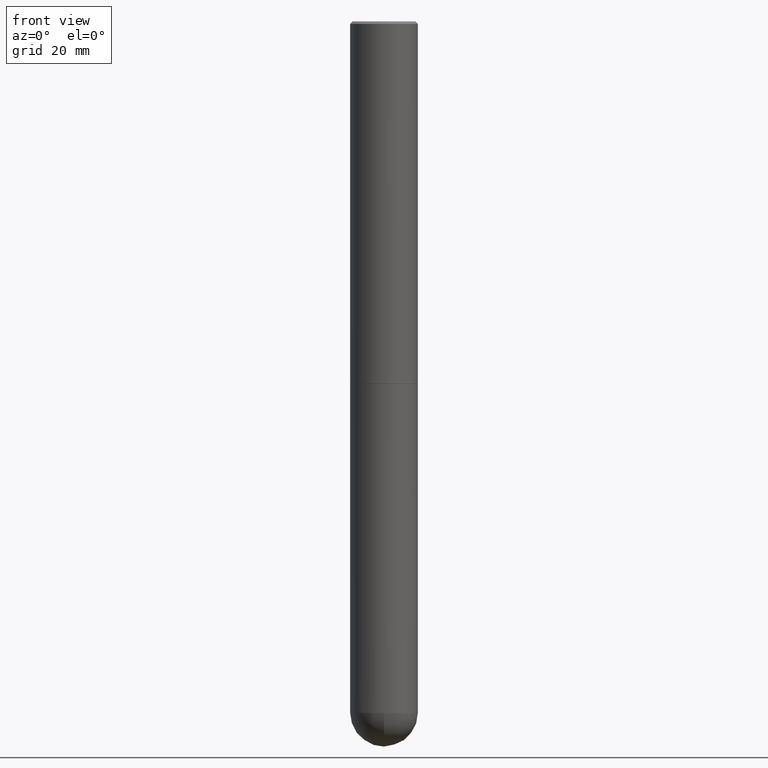
[diagram: clean part render]
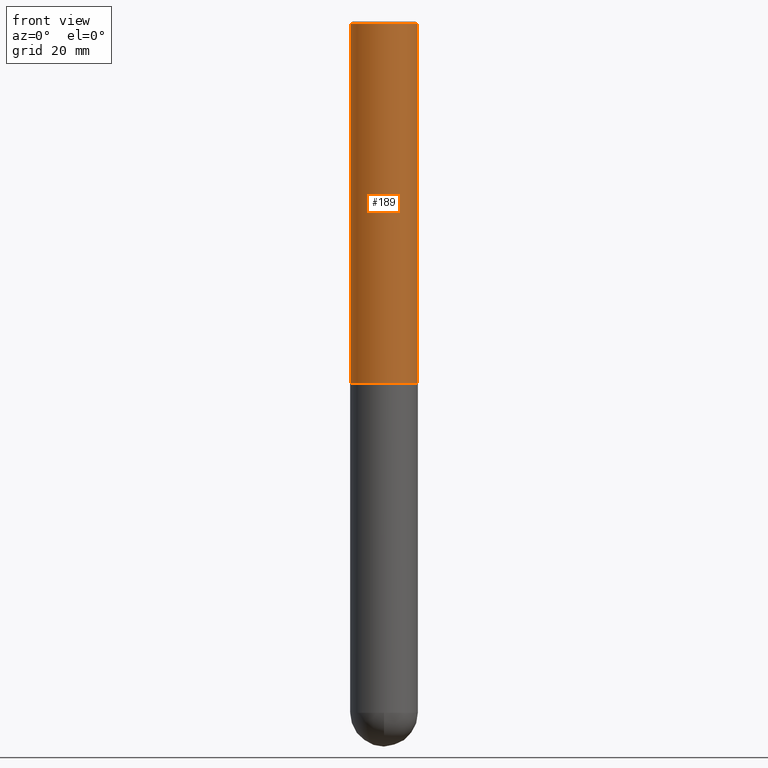
[diagram: same view with one face highlighted and labeled with its STEP entity id]
A machine part, front view. The second image highlights one B-rep face of the part: STEP entity #189.
In plain terms, the highlighted cylindrical surface (edge-blend (fillet) strip) has radius 7.0002 mm, axis along (-0, 0, 1).
Its self-contained STEP definition (entity closure, byte-faithful):
#4 = ORIENTED_EDGE ( 'NONE', *, *, #387, .F. ) ;
#6 = VERTEX_POINT ( 'NONE', #85 ) ;
#44 = AXIS2_PLACEMENT_3D ( 'NONE', #79, #138, #112 ) ;
#65 = CIRCLE ( 'NONE', #195, 0.2756000000000000116 ) ;
#78 = CARTESIAN_POINT ( 'NONE',  ( 4.890937612370288923E-31, -6.982962677686312563E-17, -0.02000000000000006287 ) ) ;
#79 = CARTESIAN_POINT ( 'NONE',  ( 7.218290275216666916E-29, -1.030580546786331359E-14, -2.951700000000000212 ) ) ;
#81 = CIRCLE ( 'NONE', #44, 0.2756000000000004557 ) ;
#85 = CARTESIAN_POINT ( 'NONE',  ( 0.2756000000000004557, -1.223030998183365327E-14, -2.951700000000000212 ) ) ;
#87 = LINE ( 'NONE', #243, #188 ) ;
#95 = CYLINDRICAL_SURFACE ( 'NONE', #308, 0.2756000000000002337 ) ;
#112 = DIRECTION ( 'NONE',  ( 1.000000000000000000, -6.982962677686269077E-15, 0.000000000000000000 ) ) ;
#125 = LINE ( 'NONE', #248, #363 ) ;
#138 = DIRECTION ( 'NONE',  ( -2.445468806185136597E-29, 3.491481338843145583E-15, 1.000000000000000000 ) ) ;
#163 = ORIENTED_EDGE ( 'NONE', *, *, #172, .T. ) ;
#164 = DIRECTION ( 'NONE',  ( -2.445468806185136597E-29, 3.491481338843145583E-15, 1.000000000000000000 ) ) ;
#172 = EDGE_CURVE ( 'NONE', #6, #349, #125, .T. ) ;
#188 = VECTOR ( 'NONE', #219, 39.37007874015748143 ) ;
#189 = ADVANCED_FACE ( 'NONE', ( #338 ), #95, .T. ) ;
#191 = CARTESIAN_POINT ( 'NONE',  ( 0.000000000000000000, 0.000000000000000000, 0.000000000000000000 ) ) ;
#195 = AXIS2_PLACEMENT_3D ( 'NONE', #78, #268, #290 ) ;
#219 = DIRECTION ( 'NONE',  ( -2.445468806185136877E-29, 3.491481338843145188E-15, 1.000000000000000000 ) ) ;
#243 = CARTESIAN_POINT ( 'NONE',  ( -0.2756000000000002337, 1.958255779754837773E-15, -1.355658510874253128E-29 ) ) ;
#248 = CARTESIAN_POINT ( 'NONE',  ( 0.2756000000000002337, -1.924504513970336926E-15, 1.343874319409361109E-29 ) ) ;
#251 = DIRECTION ( 'NONE',  ( 1.000000000000000000, -6.982962677686267499E-15, 4.876176775795935793E-29 ) ) ;
#257 = VERTEX_POINT ( 'NONE', #326 ) ;
#265 = CARTESIAN_POINT ( 'NONE',  ( 0.2756000000000000116, -1.960582874962697406E-15, -0.02000000000000006287 ) ) ;
#268 = DIRECTION ( 'NONE',  ( -2.445468806185136597E-29, 3.491481338843145583E-15, 1.000000000000000000 ) ) ;
#278 = DIRECTION ( 'NONE',  ( -2.445468806185136877E-29, 3.491481338843145188E-15, 1.000000000000000000 ) ) ;
#284 = EDGE_CURVE ( 'NONE', #362, #6, #81, .T. ) ;
#286 = EDGE_CURVE ( 'NONE', #257, #349, #65, .T. ) ;
#290 = DIRECTION ( 'NONE',  ( 1.000000000000000000, -6.982962677686267499E-15, 0.000000000000000000 ) ) ;
#298 = CARTESIAN_POINT ( 'NONE',  ( -0.2756000000000004002, -3.229561767565246331E-15, -2.951700000000000212 ) ) ;
#308 = AXIS2_PLACEMENT_3D ( 'NONE', #191, #164, #251 ) ;
#326 = CARTESIAN_POINT ( 'NONE',  ( -0.2756000000000000116, 1.854674887193472050E-15, -0.02000000000000006287 ) ) ;
#338 = FACE_OUTER_BOUND ( 'NONE', #394, .T. ) ;
#349 = VERTEX_POINT ( 'NONE', #265 ) ;
#361 = ORIENTED_EDGE ( 'NONE', *, *, #286, .F. ) ;
#362 = VERTEX_POINT ( 'NONE', #298 ) ;
#363 = VECTOR ( 'NONE', #278, 39.37007874015748143 ) ;
#387 = EDGE_CURVE ( 'NONE', #362, #257, #87, .T. ) ;
#394 = EDGE_LOOP ( 'NONE', ( #4, #399, #163, #361 ) ) ;
#399 = ORIENTED_EDGE ( 'NONE', *, *, #284, .T. ) ;